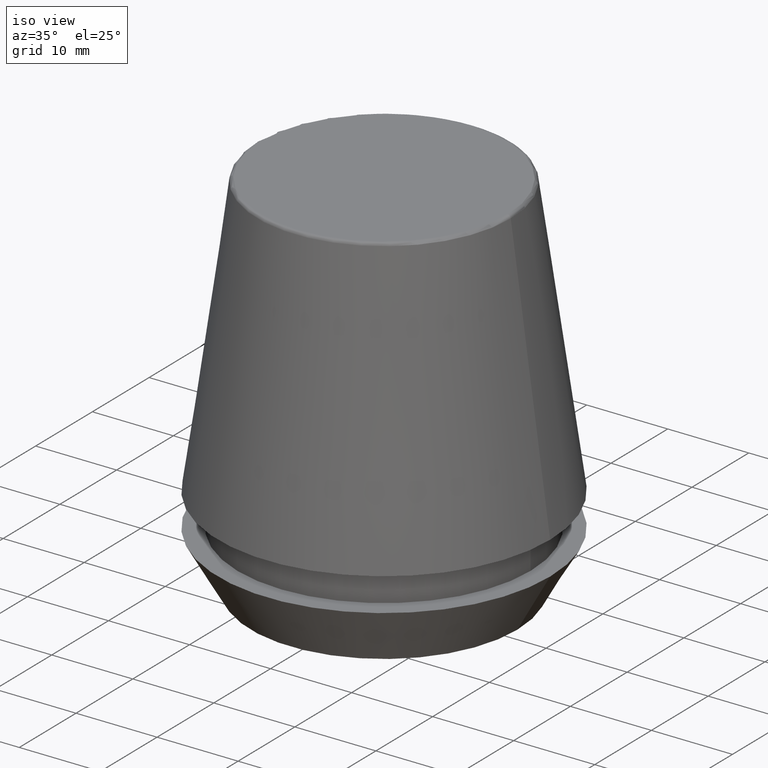
[diagram: clean part render]
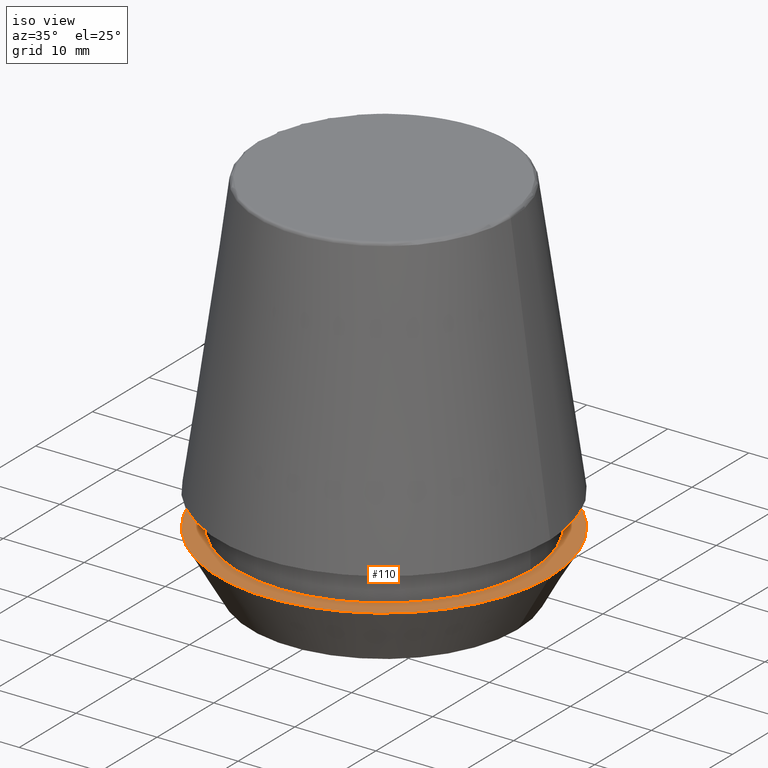
[diagram: same view with one face highlighted and labeled with its STEP entity id]
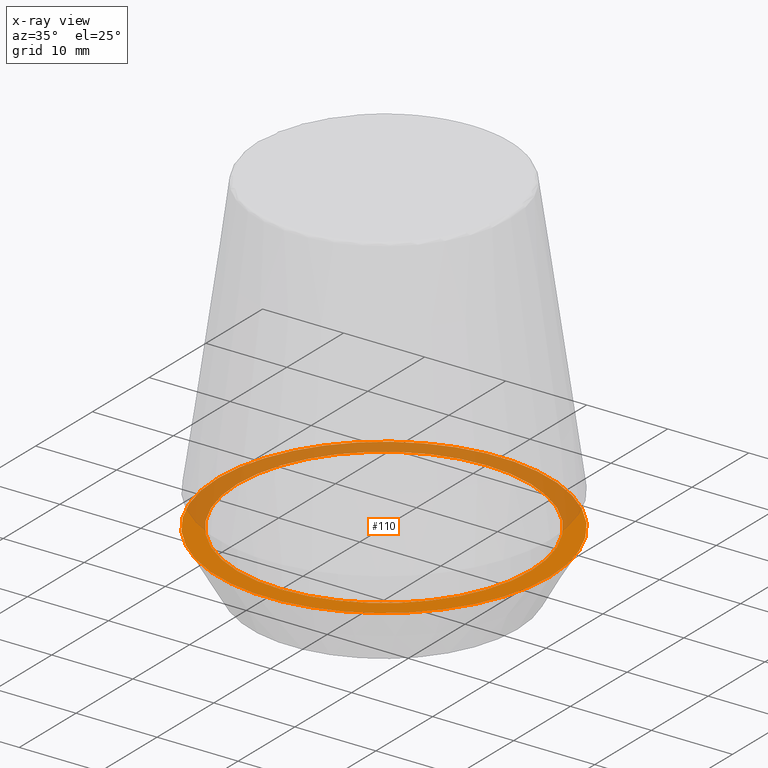
[diagram: x-ray of the same camera — body ghosted, the highlighted face saturated]
A machine part, iso view. The second image highlights one B-rep face of the part: STEP entity #110.
The next image is the same camera in x-ray: the body ghosted, the highlighted face saturated — about 47% of this face is hidden behind the body in this view.
In plain terms, the highlighted planar face has unit normal (0, 0, -1).
Its self-contained STEP definition (entity closure, byte-faithful):
#1 = AXIS2_PLACEMENT_3D ( 'NONE', #218, #126, #375 ) ;
#3 = EDGE_CURVE ( 'NONE', #191, #173, #342, .T. ) ;
#25 = AXIS2_PLACEMENT_3D ( 'NONE', #56, #243, #318 ) ;
#30 = ORIENTED_EDGE ( 'NONE', *, *, #185, .T. ) ;
#42 = CARTESIAN_POINT ( 'NONE',  ( -20.50000000000000000, 2.510525938252074100E-015, 7.000000000000006200 ) ) ;
#56 = CARTESIAN_POINT ( 'NONE',  ( 0.0000000000000000000, 0.0000000000000000000, 7.000000000000006200 ) ) ;
#63 = CARTESIAN_POINT ( 'NONE',  ( 18.10000000000000100, 0.0000000000000000000, 6.999999999999999100 ) ) ;
#64 = EDGE_LOOP ( 'NONE', ( #88, #30 ) ) ;
#85 = EDGE_CURVE ( 'NONE', #136, #363, #385, .T. ) ;
#88 = ORIENTED_EDGE ( 'NONE', *, *, #3, .T. ) ;
#101 = DIRECTION ( 'NONE',  ( -0.0000000000000000000, -0.0000000000000000000, 1.000000000000000000 ) ) ;
#102 = DIRECTION ( 'NONE',  ( 1.000000000000000000, 0.0000000000000000000, 0.0000000000000000000 ) ) ;
#110 = ADVANCED_FACE ( 'NONE', ( #327, #298 ), #276, .F. ) ;
#112 = CIRCLE ( 'NONE', #222, 18.10000000000000100 ) ;
#125 = ORIENTED_EDGE ( 'NONE', *, *, #237, .F. ) ;
#126 = DIRECTION ( 'NONE',  ( 0.0000000000000000000, 0.0000000000000000000, -1.000000000000000000 ) ) ;
#136 = VERTEX_POINT ( 'NONE', #160 ) ;
#149 = CARTESIAN_POINT ( 'NONE',  ( 0.0000000000000000000, 0.0000000000000000000, 7.000000000000006200 ) ) ;
#151 = AXIS2_PLACEMENT_3D ( 'NONE', #321, #101, #294 ) ;
#160 = CARTESIAN_POINT ( 'NONE',  ( -18.10000000000000100, 2.216610706456709600E-015, 6.999999999999999100 ) ) ;
#163 = ORIENTED_EDGE ( 'NONE', *, *, #85, .F. ) ;
#169 = DIRECTION ( 'NONE',  ( -0.0000000000000000000, -0.0000000000000000000, 1.000000000000000000 ) ) ;
#173 = VERTEX_POINT ( 'NONE', #42 ) ;
#185 = EDGE_CURVE ( 'NONE', #173, #191, #257, .T. ) ;
#191 = VERTEX_POINT ( 'NONE', #255 ) ;
#218 = CARTESIAN_POINT ( 'NONE',  ( 0.0000000000000000000, 20.50000000000000000, 7.000000000000002700 ) ) ;
#222 = AXIS2_PLACEMENT_3D ( 'NONE', #354, #169, #378 ) ;
#233 = EDGE_LOOP ( 'NONE', ( #125, #163 ) ) ;
#237 = EDGE_CURVE ( 'NONE', #363, #136, #112, .T. ) ;
#243 = DIRECTION ( 'NONE',  ( -0.0000000000000000000, -0.0000000000000000000, 1.000000000000000000 ) ) ;
#255 = CARTESIAN_POINT ( 'NONE',  ( 20.50000000000000000, 0.0000000000000000000, 7.000000000000006200 ) ) ;
#257 = CIRCLE ( 'NONE', #373, 20.50000000000000000 ) ;
#276 = PLANE ( 'NONE',  #1 ) ;
#294 = DIRECTION ( 'NONE',  ( 1.000000000000000000, 0.0000000000000000000, 0.0000000000000000000 ) ) ;
#296 = DIRECTION ( 'NONE',  ( -0.0000000000000000000, -0.0000000000000000000, 1.000000000000000000 ) ) ;
#298 = FACE_OUTER_BOUND ( 'NONE', #64, .T. ) ;
#318 = DIRECTION ( 'NONE',  ( 1.000000000000000000, 0.0000000000000000000, 0.0000000000000000000 ) ) ;
#321 = CARTESIAN_POINT ( 'NONE',  ( 0.0000000000000000000, 0.0000000000000000000, 6.999999999999999100 ) ) ;
#327 = FACE_BOUND ( 'NONE', #233, .T. ) ;
#342 = CIRCLE ( 'NONE', #25, 20.50000000000000000 ) ;
#354 = CARTESIAN_POINT ( 'NONE',  ( 0.0000000000000000000, 0.0000000000000000000, 6.999999999999999100 ) ) ;
#363 = VERTEX_POINT ( 'NONE', #63 ) ;
#373 = AXIS2_PLACEMENT_3D ( 'NONE', #149, #296, #102 ) ;
#375 = DIRECTION ( 'NONE',  ( -1.000000000000000000, 0.0000000000000000000, -0.0000000000000000000 ) ) ;
#378 = DIRECTION ( 'NONE',  ( 1.000000000000000000, 0.0000000000000000000, 0.0000000000000000000 ) ) ;
#385 = CIRCLE ( 'NONE', #151, 18.10000000000000100 ) ;